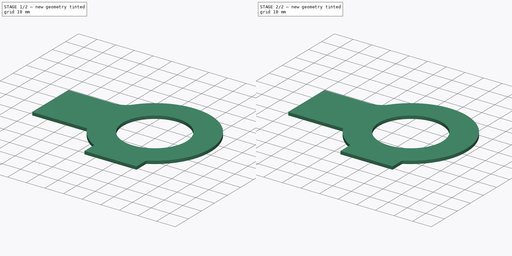
[diagram: build sequence overview — one tinted view per stage of 2, left to right]
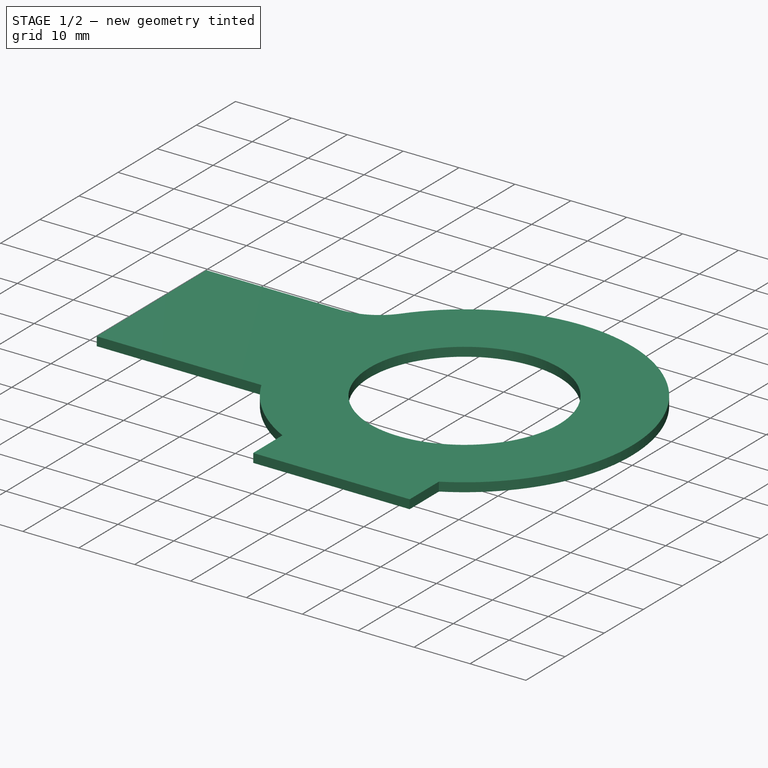
[diagram: stage 1 of 2 — iso view after this stage's code; geometry added in this stage tinted green]
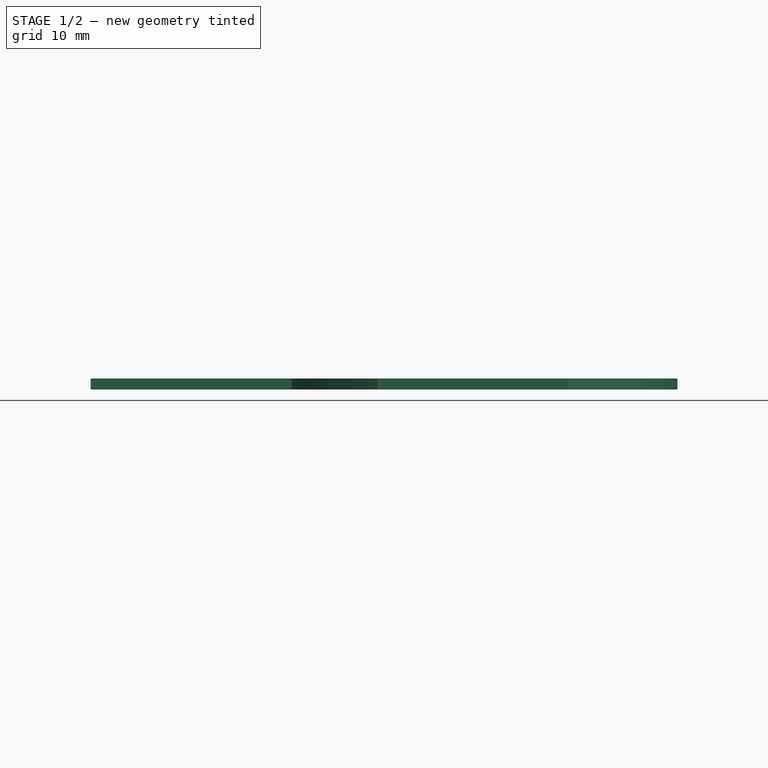
[diagram: stage 1 of 2 — front view after this stage's code; geometry added in this stage tinted green]
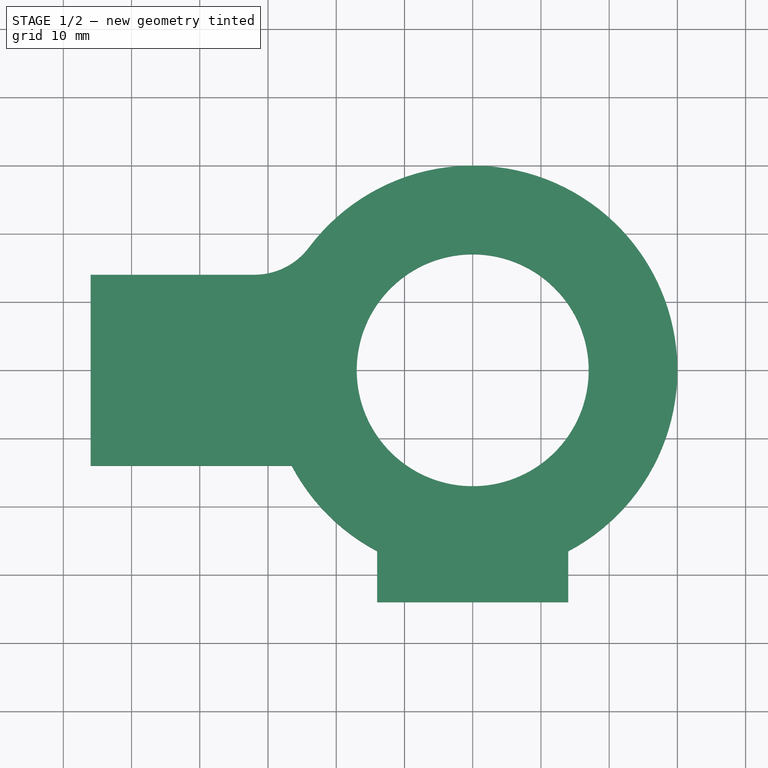
[diagram: stage 1 of 2 — top view after this stage's code; geometry added in this stage tinted green]
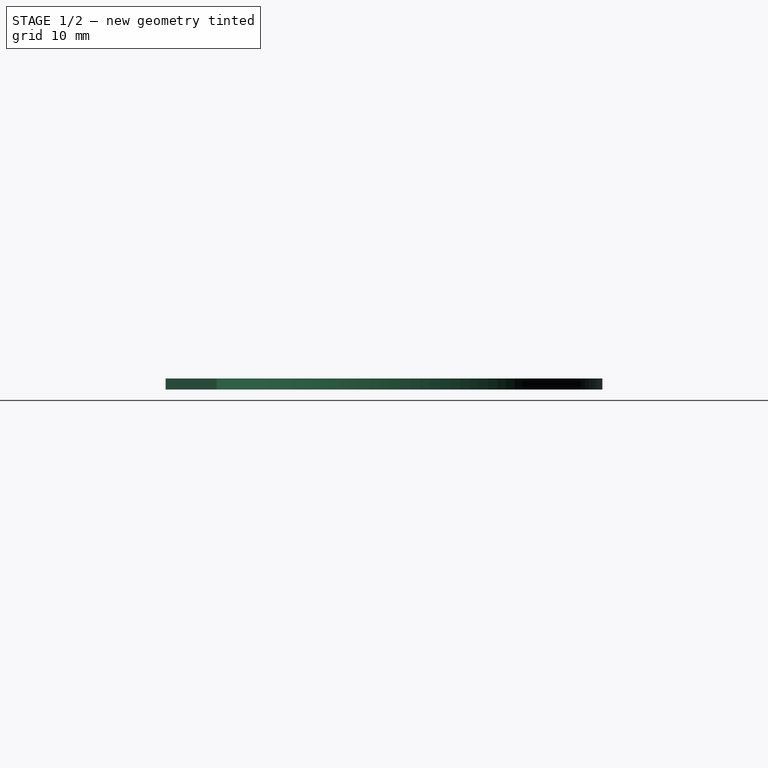
[diagram: stage 1 of 2 — right view after this stage's code; geometry added in this stage tinted green]
FCSTD DOCUMENT  (FreeCAD 0.15R4671 (Git))
Label: DIN463_M33TabWasher
License: CreativeCommons Attribution-ShareAlike
LicenseURL: http://creativecommons.org/licenses/by-sa/4.0/
objects: PartDesign::Fillet×2, Sketcher::SketchObject×1, PartDesign::Pad×1
note: 5 computed .brp shape members not serialized (recipe doc carries the construction recipe); baked Part::Feature solids carry a one-line shape summary decoded from their .brp

FEATURE [Sketcher::SketchObject] Sketch
  sketch-geometry (9):
    g0: LineSegment StartX=-26.533 StartY=-14 StartZ=0 EndX=-56 EndY=-14 EndZ=0
    g1: LineSegment StartX=-56 StartY=-14 StartZ=0 EndX=-56 EndY=14 EndZ=0
    g2: LineSegment StartX=-14 StartY=-34 StartZ=0 EndX=14 EndY=-34 EndZ=0
    g3: LineSegment StartX=14 StartY=-34 StartZ=0 EndX=14 EndY=-26.533 EndZ=0
    g4: LineSegment StartX=-14 StartY=-26.533 StartZ=0 EndX=-14 EndY=-34 EndZ=0
    g5: Circle CenterX=0 CenterY=0 CenterZ=0 NormalX=0 NormalY=0 NormalZ=1 Radius=17
    g6: LineSegment StartX=-56 StartY=14 StartZ=0 EndX=-26.533 EndY=14 EndZ=0
    g7: ArcOfCircle CenterX=0 CenterY=0 CenterZ=0 NormalX=0 NormalY=0 NormalZ=1 Radius=30 StartAngle=5.19791 EndAngle=8.93926
    g8: ArcOfCircle CenterX=0 CenterY=0 CenterZ=0 NormalX=0 NormalY=0 NormalZ=1 Radius=30 StartAngle=3.62711 EndAngle=4.22687
  constraints (26):
    c: Coincident(g0,g1)
    c: Horizontal(g0)
    c: Vertical(g1)
    c: Coincident(g2,g3)
    c: Coincident(g4,g2)
    c: Vertical(g3)
    c: Vertical(g4)
    c: Symmetric(g2,g2,g-2)
    c: Symmetric(g6,g0,g-1)
    c: DistanceX(g-1,g0) = -56
    c: DistanceY(g-1,g2) = -34
    c: DistanceY(g1) = 28
    c: Radius(g5) = 17
    c: Coincident(g5,g-1)
    c: Coincident(g6,g1)
    c: Horizontal(g6)
    c: Coincident(g7,g6)
    c: Coincident(g7,g-1)
    c: Radius(g7) = 30
    c: Coincident(g7,g3)
    c: Coincident(g8,g0)
    c: Coincident(g8,g4)
    c: Coincident(g8,g-1)
    c: Equal(g3,g4)
    c: Equal(g6,g0)
    c: Equal(g1,g2)
FEATURE [PartDesign::Pad] Pad
  Length = 1.6
  Length2 = 100
  Sketch = -> Sketch
  Type = 0
FEATURE [PartDesign::Fillet] Fillet
  Base = -> Pad [Edge8]
  Radius = 10
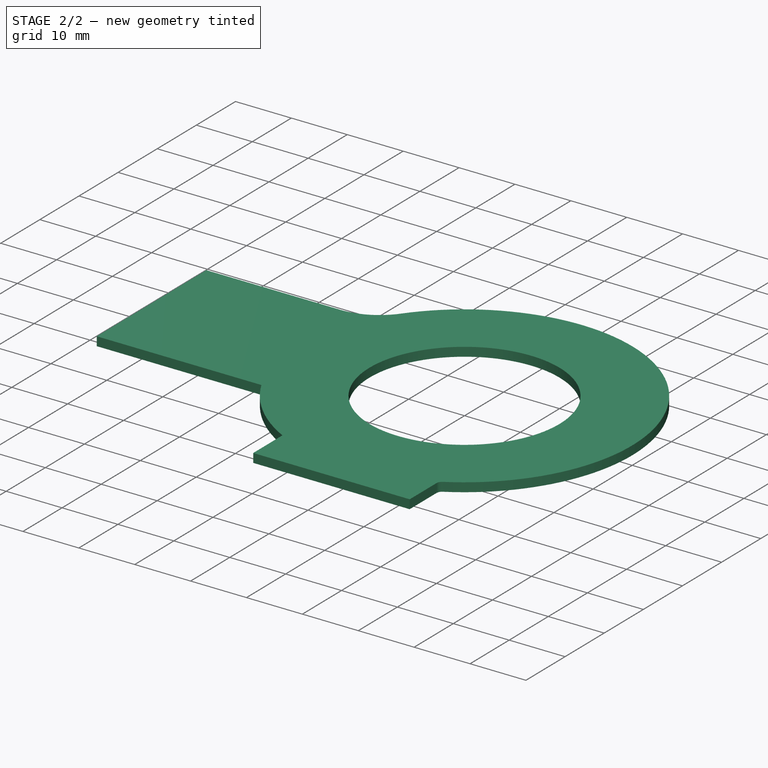
[diagram: stage 2 of 2 — iso view after this stage's code; geometry added in this stage tinted green]
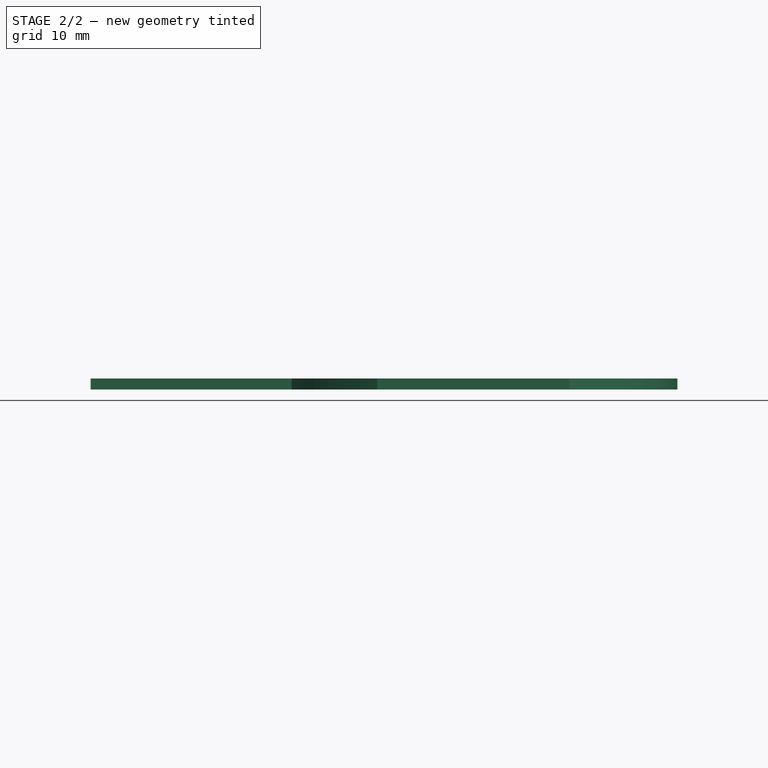
[diagram: stage 2 of 2 — front view after this stage's code; geometry added in this stage tinted green]
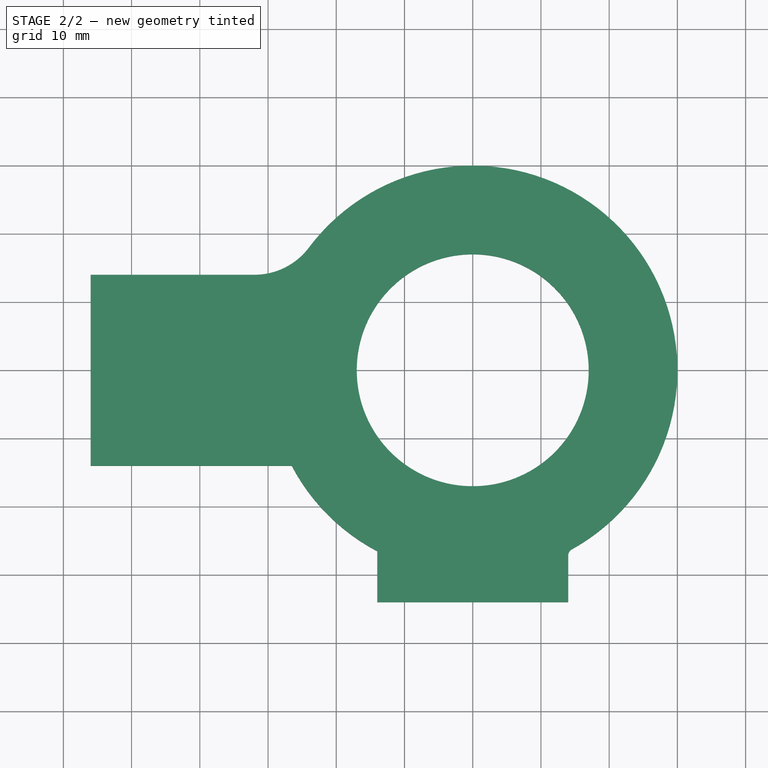
[diagram: stage 2 of 2 — top view after this stage's code; geometry added in this stage tinted green]
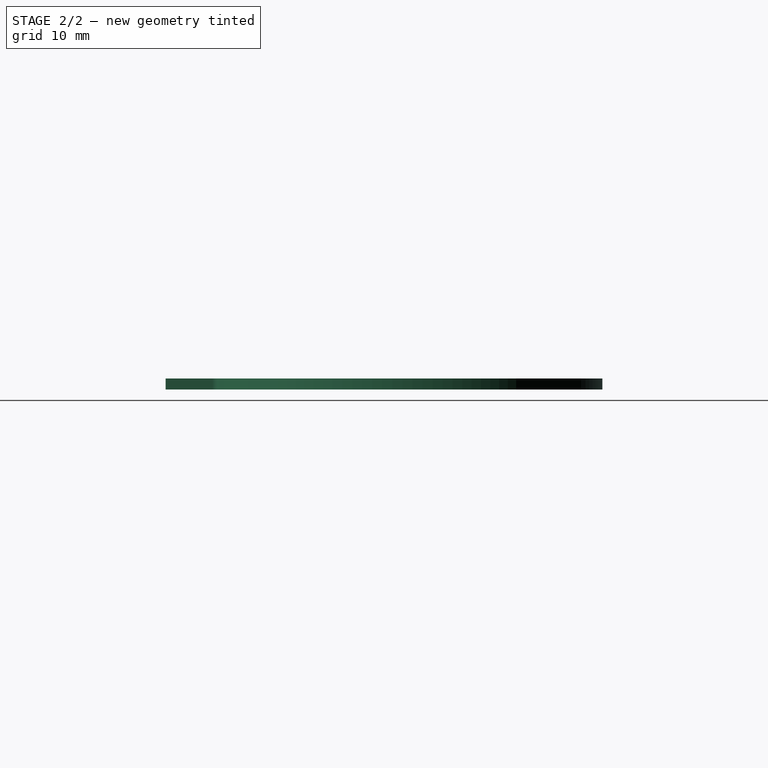
[diagram: stage 2 of 2 — right view after this stage's code; geometry added in this stage tinted green]
FEATURE [PartDesign::Fillet] Fillet001
  Base = -> Fillet [Edge25]
  Radius = 1
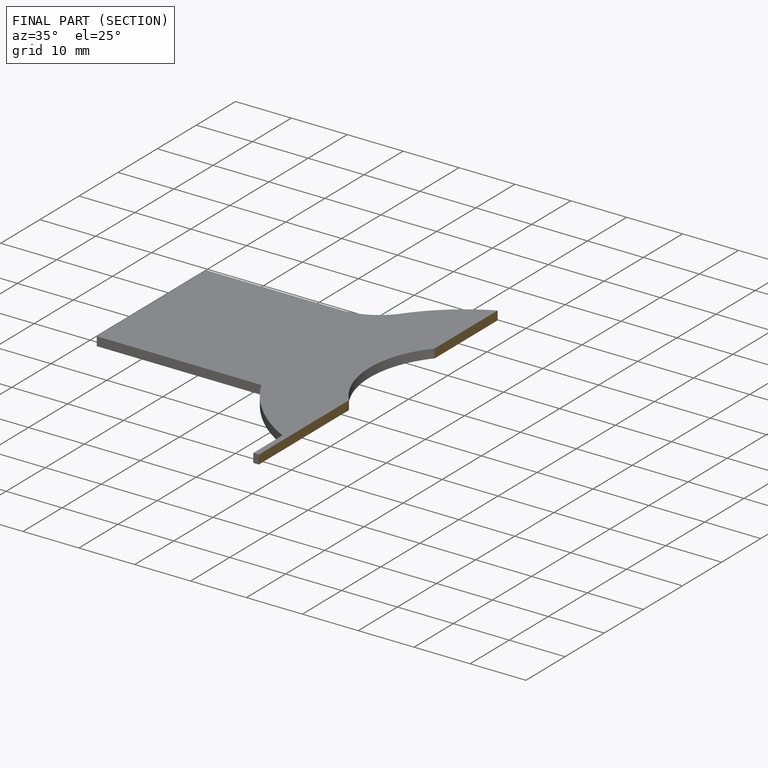
[diagram: finished part — half-section view (interior)]
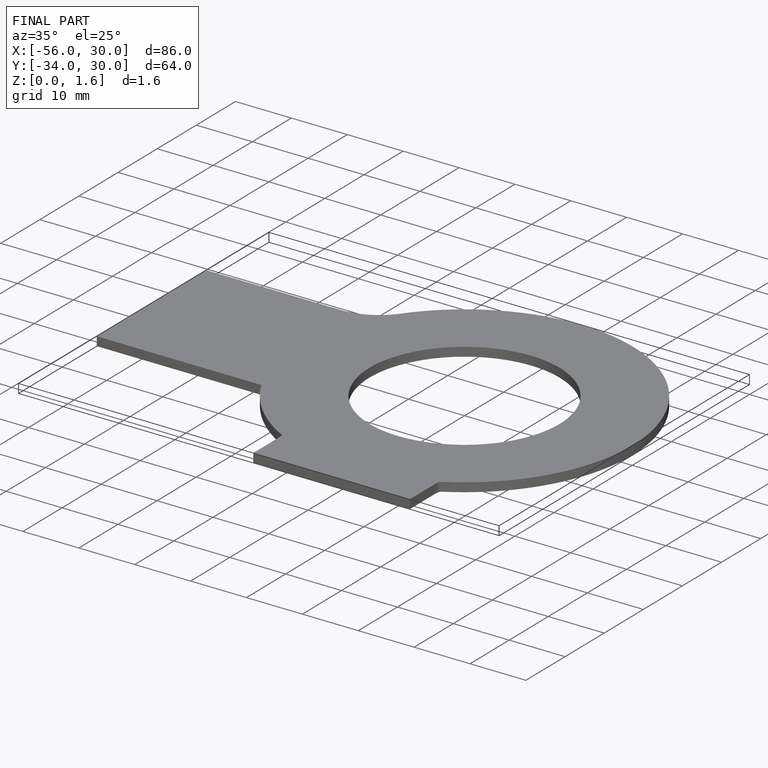
[diagram: finished part — iso view with bounding-box wireframe]
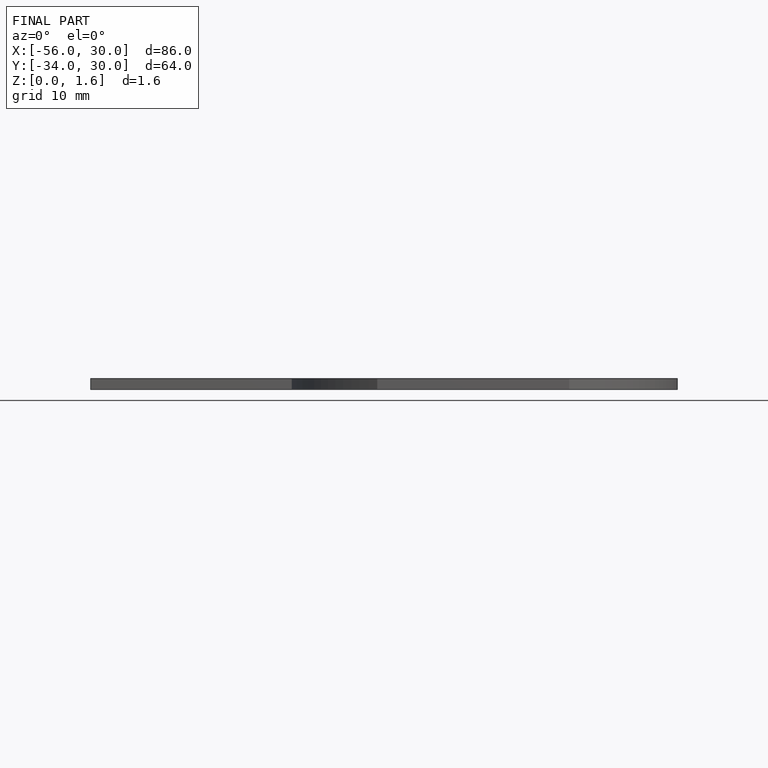
[diagram: finished part — front view with bounding-box wireframe]
